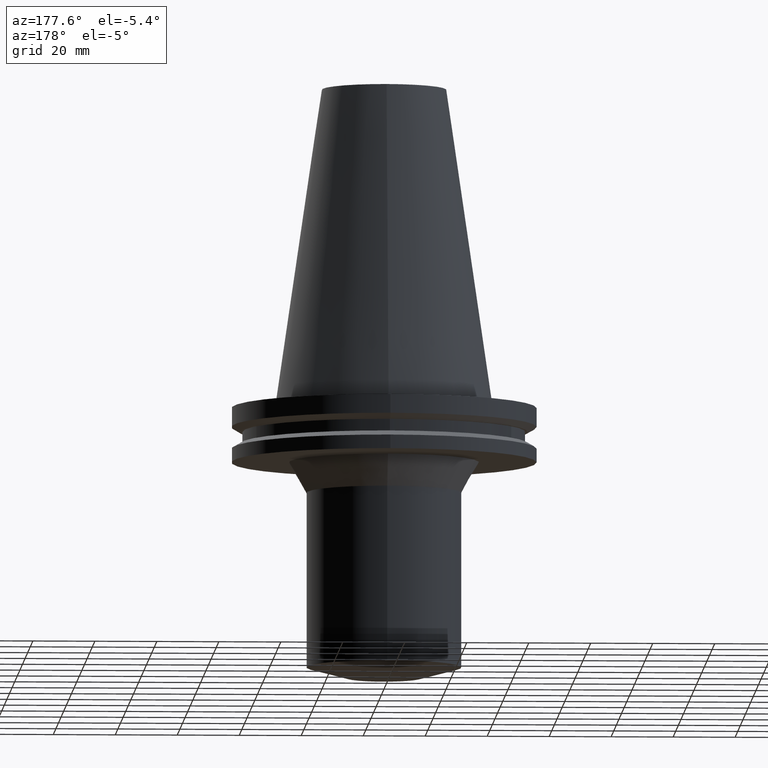
[diagram: clean part render]
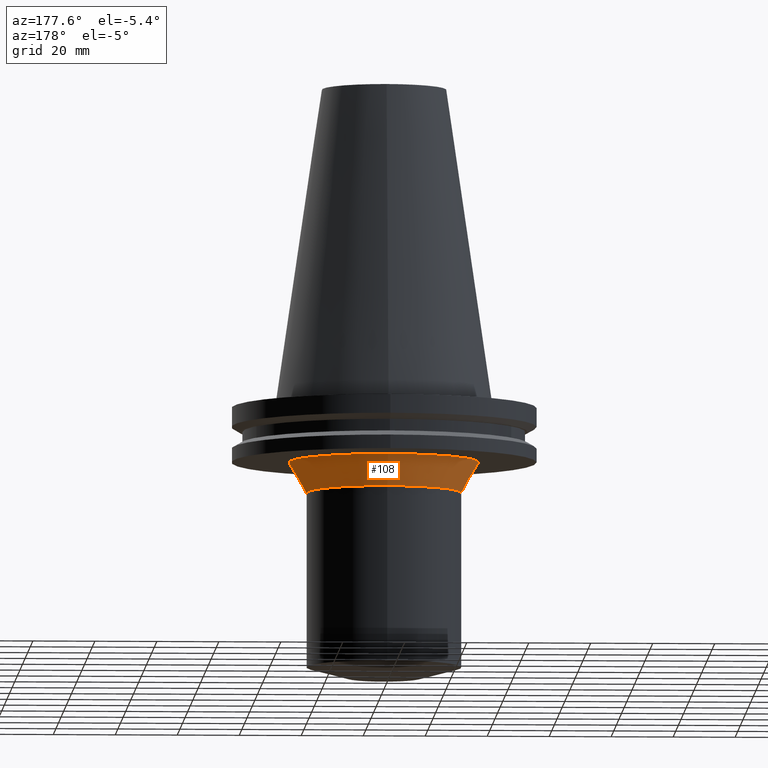
[diagram: same view with one face highlighted and labeled with its STEP entity id]
A machine part, auxiliary view. The second image highlights one B-rep face of the part: STEP entity #108.
In plain terms, the highlighted conical surface has half-angle 30 deg.
Its self-contained STEP definition (entity closure, byte-faithful):
#108=ADVANCED_FACE('Unnamed[1]',(#233,#234),#235,.T.);
#124=EDGE_CURVE('Unnamed[1]',#260,#260,#261,.T.);
#131=EDGE_CURVE('Unnamed[1]',#270,#270,#271,.T.);
#233=FACE_BOUND('',#385,.T.);
#234=FACE_BOUND('',#386,.T.);
#235=CONICAL_SURFACE('',#387,27.8434500757615,0.523598775598437);
#260=VERTEX_POINT('',#418);
#261=CIRCLE('',#419,30.6869001515146);
#270=VERTEX_POINT('',#431);
#271=CIRCLE('',#432,25.0000000000083);
#385=EDGE_LOOP('',(#530));
#386=EDGE_LOOP('',(#531));
#387=AXIS2_PLACEMENT_3D('',#532,#533,#534);
#418=CARTESIAN_POINT('',(1.16647607618786E-015,30.6869001515146,-19.0500000000001));
#419=AXIS2_PLACEMENT_3D('',#562,#563,#564);
#431=CARTESIAN_POINT('',(1.76961462476652E-015,25.0000000000084,-28.899999999977));
#432=AXIS2_PLACEMENT_3D('',#573,#574,#575);
#530=ORIENTED_EDGE('',*,*,#131,.F.);
#531=ORIENTED_EDGE('',*,*,#124,.T.);
#532=CARTESIAN_POINT('',(1.46804535047719E-015,2.93609070095438E-015,-23.9749999999886));
#533=DIRECTION('',(-6.12323399573677E-017,-1.22464679914735E-016,1.0));
#534=DIRECTION('',(-1.23259516440783E-032,1.0,1.22464679914735E-016));
#562=CARTESIAN_POINT('',(1.16647607618786E-015,2.33295215237572E-015,-19.0500000000001));
#563=DIRECTION('',(6.12323399573677E-017,1.22464679914735E-016,-1.0));
#564=DIRECTION('',(-1.23259516440783E-032,1.0,1.22464679914735E-016));
#573=CARTESIAN_POINT('',(1.76961462476652E-015,3.53922924953303E-015,-28.899999999977));
#574=DIRECTION('',(6.12323399573677E-017,1.22464679914735E-016,-1.0));
#575=DIRECTION('',(-1.23259516440783E-032,1.0,1.22464679914735E-016));